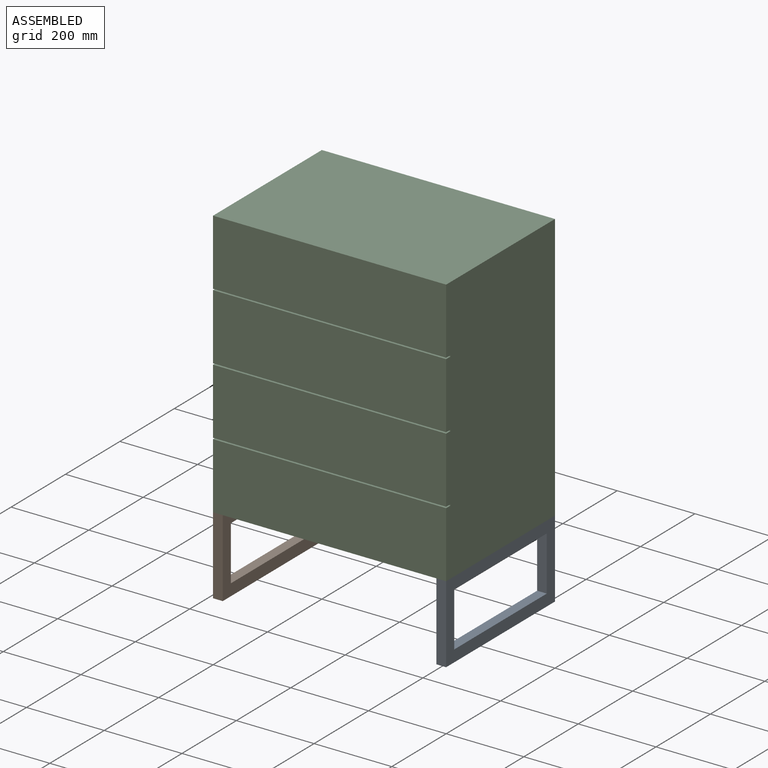
[diagram: assembled view]
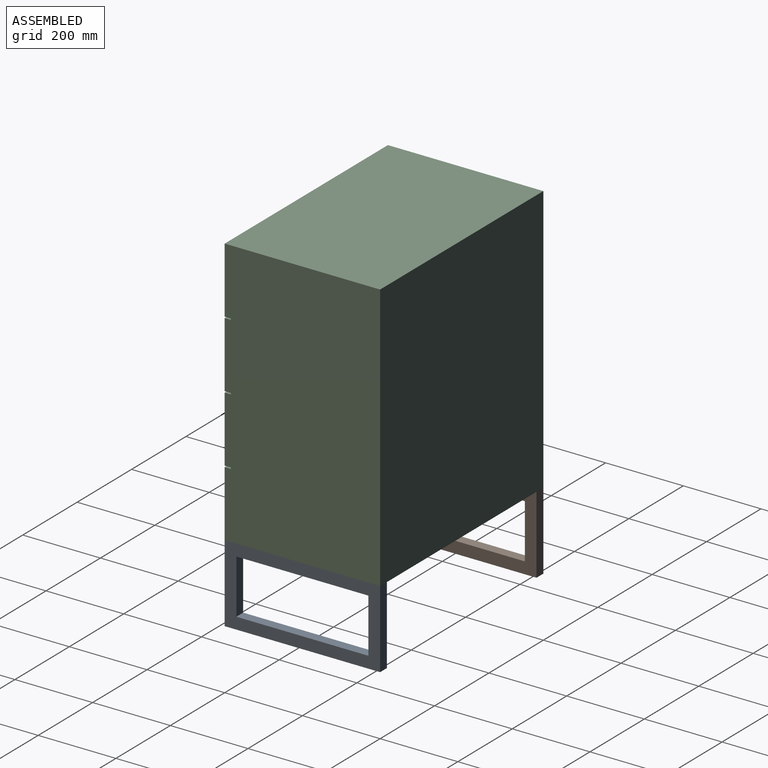
[diagram: assembled view, second angle]
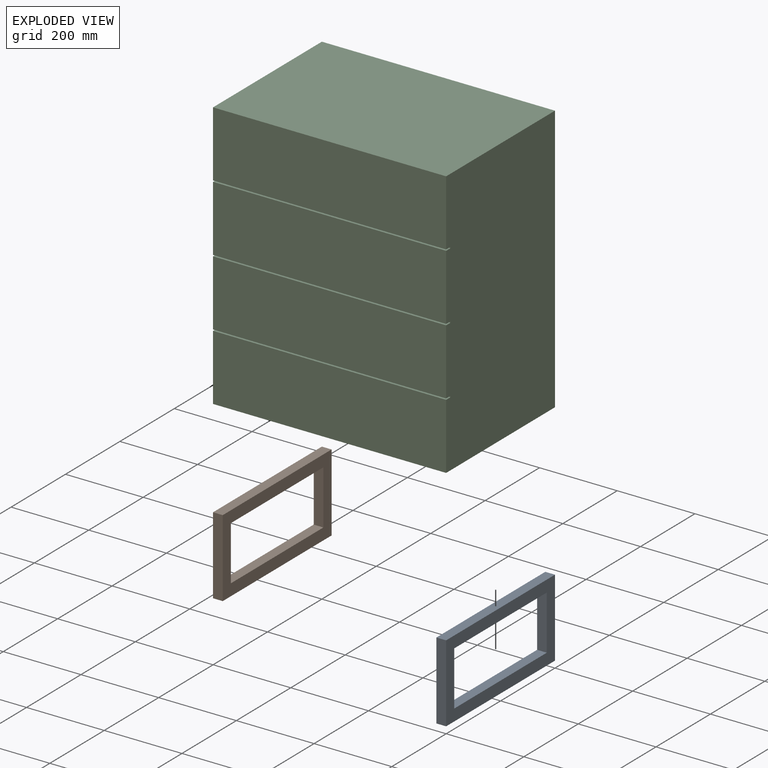
[diagram: exploded view]
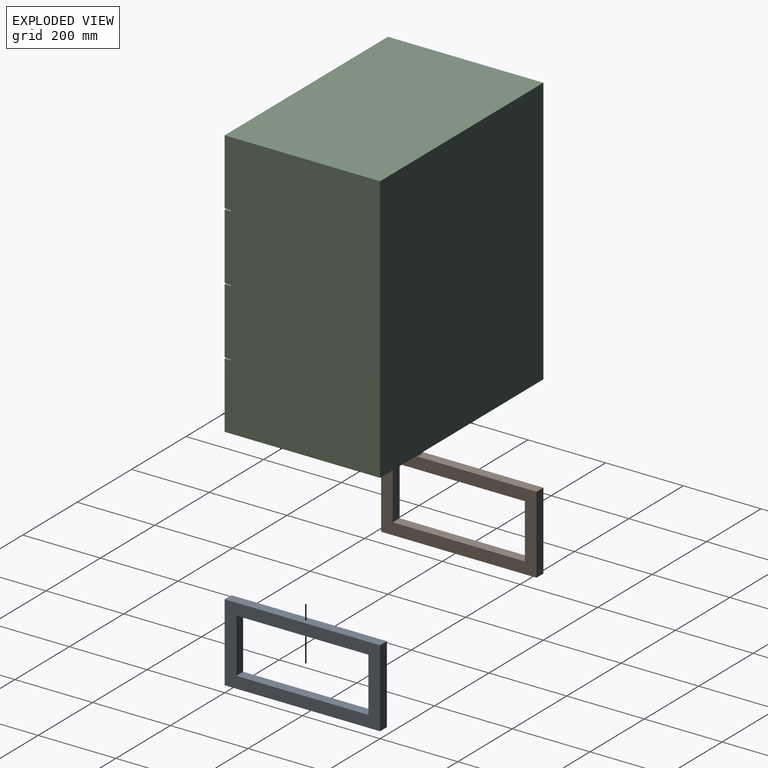
[diagram: exploded view, second angle]
ASSEMBLY  parts=3 mates=2
PART A: 10 faces, bbox 25x400x200 mm
  f0: plane 140x25mm, normal (0,-1,0), area 3500mm2, adj f1,f7,f8,f9
  f1: plane 340x25mm, normal (0,0,1), area 8500mm2, adj f0,f2,f8,f9
  f2: plane 140x25mm, normal (0,1,0), area 3500mm2, adj f1,f7,f8,f9
  f3: plane 200x25mm, normal (0,1,0), area 5000mm2, adj f4,f6,f8,f9
  f4: plane 400x25mm, normal (0,0,1), area 10000mm2, adj f3,f5,f8,f9
  f5: plane 200x25mm, normal (0,-1,0), area 5000mm2, adj f4,f6,f8,f9
  f6: plane 400x25mm, normal (0,0,-1), area 10000mm2, adj f3,f5,f8,f9
  f7: plane 340x25mm, normal (0,0,-1), area 8500mm2, adj f0,f2,f8,f9
  f8: plane 400x200mm, normal (-1,0,0), area 32400mm2, adj f0,f1,f2,f3,f4,f5,f6,f7
  f9: plane 400x200mm, normal (1,0,0), area 32400mm2, adj f0,f1,f2,f3,f4,f5,f6,f7
PART B: same geometry as A
PART C: 18 faces, bbox 600x400x690 mm
  f0: plane 600x170mm, normal (0,-1,0), area 102000.2mm2, adj f5,f7,f9,f15
  f1: plane 600x170mm, normal (0,-1,0), area 102000.1mm2, adj f5,f7,f8,f16
  f2: plane 600x170mm, normal (0,-1,0), area 102000.1mm2, adj f4,f5,f7,f12
  f3: plane 600x170mm, normal (0,-1,0), area 102000.1mm2, adj f5,f7,f10,f13
  f4: plane 600x400mm, normal (0,0,1), area 240000mm2, adj f2,f5,f6,f7
  f5: plane 690x400mm, normal (1,0,0), area 275840mm2, adj f0,f1,f2,f3,f4,f6,f8,f9
  f6: plane 690x600mm, normal (0,1,0), area 414000mm2, adj f4,f5,f7,f8
  f7: plane 690x400mm, normal (-1,0,0), area 275840mm2, adj f0,f1,f2,f3,f4,f6,f8,f9
  f8: plane 600x400mm, normal (0,0,-1), area 240000mm2, adj f1,f5,f6,f7
  f9: plane 600x16mm, normal (0,0,1), area 9600mm2, adj f0,f5,f7,f11
  f10: plane 600x16mm, normal (0,0,-1), area 9600mm2, adj f3,f5,f7,f11
  f11: plane 600x3.33mm, normal (0,-1,0), area 1999.8mm2, adj f5,f7,f9,f10
  f12: plane 600x16mm, normal (0,0,-1), area 9600mm2, adj f2,f5,f7,f14
  f13: plane 600x16mm, normal (0,0,1), area 9600mm2, adj f3,f5,f7,f14
  f14: plane 600x3.33mm, normal (0,-1,0), area 1999.8mm2, adj f5,f7,f12,f13
  f15: plane 600x16mm, normal (0,0,-1), area 9600mm2, adj f0,f5,f7,f17
  f16: plane 600x16mm, normal (0,0,1), area 9600mm2, adj f1,f5,f7,f17
  f17: plane 600x3.33mm, normal (0,-1,0), area 1999.8mm2, adj f5,f7,f15,f16
PLACE A t=(-3658.01,-139.55,0)mm
PLACE B t=(-4233.01,-139.55,0)mm
PLACE C t=(-3658.01,-139.55,0)mm
MATE fastened B.f4 <-> C.f8  axis (0,0,1) through (0,0,200)mm
MATE fastened A.f4 <-> C.f8  axis (0,0,1) through (600,0,200)mm
